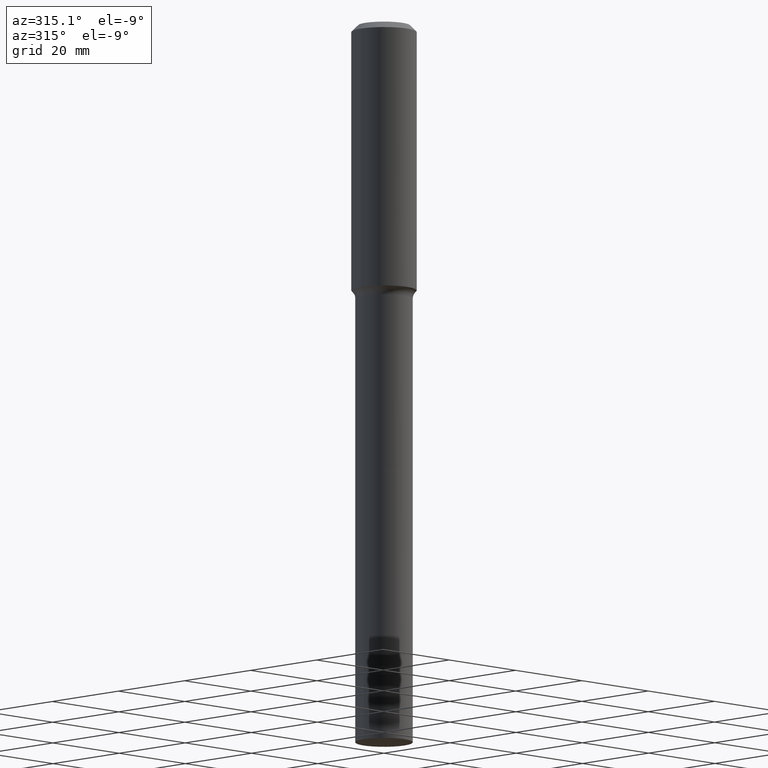
[diagram: clean part render]
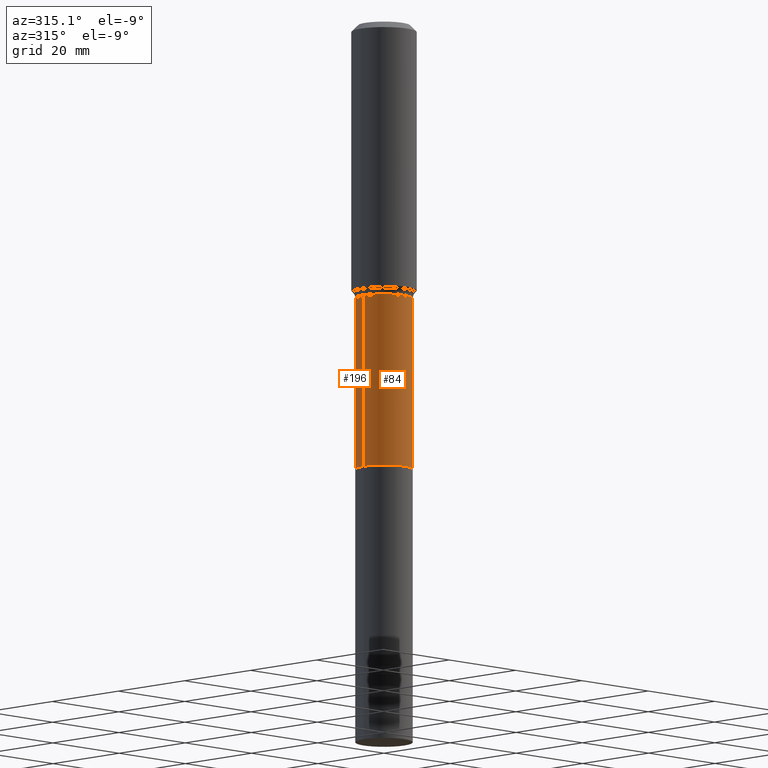
[diagram: same view with one multi-face feature highlighted, each face labeled with its STEP entity id]
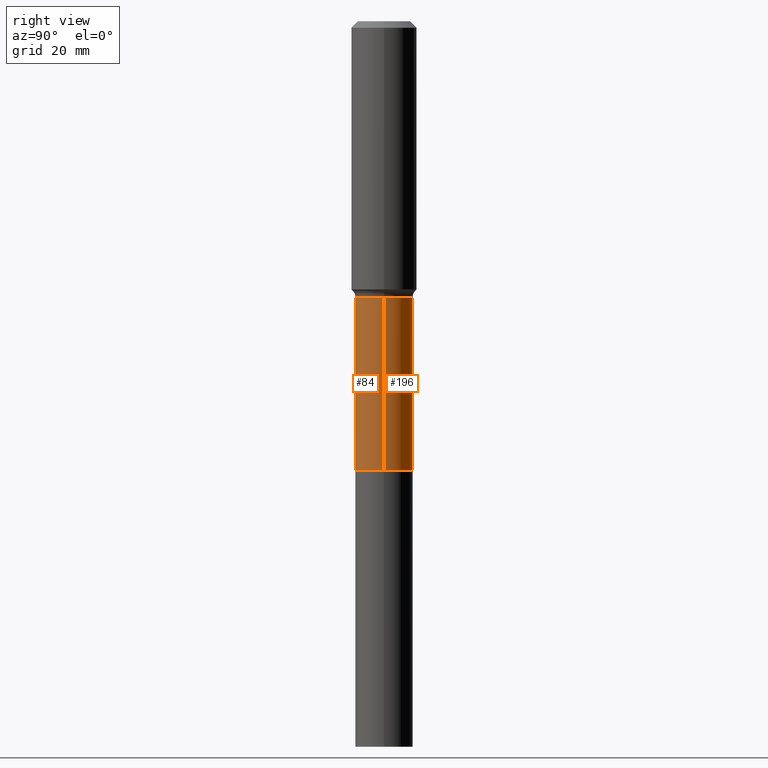
[diagram: same view with one multi-face feature highlighted, each face labeled with its STEP entity id]
A machine part, auxiliary view. The highlighted faces form ONE feature: a constant-radius fillet chain: 2 tangent blend faces with common blend radius 6.1519 mm. The faces share edges in the B-rep.
A second angle (right view) of the same feature is appended — it is thin or edge-on in the first view.
Their STEP definitions:
[1] entity #196 (Cylinder):
#4 = AXIS2_PLACEMENT_3D ( 'NONE', #144, #382, #340 ) ;
#16 = DIRECTION ( 'NONE',  ( -2.445468806185136877E-29, 3.491481338843145188E-15, 1.000000000000000000 ) ) ;
#20 = CARTESIAN_POINT ( 'NONE',  ( 0.2422000000000000264, -1.691273560535613991E-15, 1.181010015097775692E-29 ) ) ;
#59 = CARTESIAN_POINT ( 'NONE',  ( -0.2421999999999999154, -8.930353040330880505E-15, -2.322400000000000464 ) ) ;
#91 = DIRECTION ( 'NONE',  ( 1.000000000000000000, -6.982962677686266711E-15, 4.876176775795935232E-29 ) ) ;
#128 = CYLINDRICAL_SURFACE ( 'NONE', #398, 0.2422000000000000264 ) ;
#144 = CARTESIAN_POINT ( 'NONE',  ( 5.679356755484362262E-29, -8.108616261329323209E-15, -2.322400000000000464 ) ) ;
#160 = DIRECTION ( 'NONE',  ( -2.445468806185136597E-29, 3.491481338843145583E-15, 1.000000000000000000 ) ) ;
#163 = CARTESIAN_POINT ( 'NONE',  ( 9.241182071693010244E-29, -1.319395883135436111E-14, -3.778899999999999260 ) ) ;
#196 = ADVANCED_FACE ( 'NONE', ( #318 ), #128, .T. ) ;
#203 = LINE ( 'NONE', #366, #285 ) ;
#254 = CARTESIAN_POINT ( 'NONE',  ( -0.2422000000000000819, -8.930353040330880505E-15, -3.778899999999999260 ) ) ;
#266 = ORIENTED_EDGE ( 'NONE', *, *, #372, .F. ) ;
#285 = VECTOR ( 'NONE', #16, 39.37007874015748143 ) ;
#300 = LINE ( 'NONE', #20, #502 ) ;
#318 = FACE_OUTER_BOUND ( 'NONE', #385, .T. ) ;
#321 = ORIENTED_EDGE ( 'NONE', *, *, #493, .T. ) ;
#326 = DIRECTION ( 'NONE',  ( 1.000000000000000000, -6.982962677686264344E-15, 0.000000000000000000 ) ) ;
#334 = VERTEX_POINT ( 'NONE', #408 ) ;
#340 = DIRECTION ( 'NONE',  ( 1.000000000000000000, -6.982962677686265133E-15, 0.000000000000000000 ) ) ;
#347 = ORIENTED_EDGE ( 'NONE', *, *, #468, .T. ) ;
#351 = AXIS2_PLACEMENT_3D ( 'NONE', #163, #160, #326 ) ;
#352 = VERTEX_POINT ( 'NONE', #418 ) ;
#355 = EDGE_CURVE ( 'NONE', #352, #334, #300, .T. ) ;
#365 = ORIENTED_EDGE ( 'NONE', *, *, #355, .F. ) ;
#366 = CARTESIAN_POINT ( 'NONE',  ( -0.2422000000000000264, 1.720934506010962838E-15, -1.191366078859738205E-29 ) ) ;
#372 = EDGE_CURVE ( 'NONE', #334, #426, #440, .T. ) ;
#382 = DIRECTION ( 'NONE',  ( -2.445468806185136597E-29, 3.491481338843145583E-15, 1.000000000000000000 ) ) ;
#385 = EDGE_LOOP ( 'NONE', ( #347, #321, #266, #365 ) ) ;
#398 = AXIS2_PLACEMENT_3D ( 'NONE', #485, #448, #91 ) ;
#399 = VERTEX_POINT ( 'NONE', #254 ) ;
#408 = CARTESIAN_POINT ( 'NONE',  ( 0.2421999999999999154, -9.799889821864935820E-15, -2.322400000000000464 ) ) ;
#418 = CARTESIAN_POINT ( 'NONE',  ( 0.2422000000000000819, -1.488523239188997372E-14, -3.778899999999999260 ) ) ;
#426 = VERTEX_POINT ( 'NONE', #59 ) ;
#440 = CIRCLE ( 'NONE', #4, 0.2421999999999999154 ) ;
#448 = DIRECTION ( 'NONE',  ( -2.445468806185136597E-29, 3.491481338843145583E-15, 1.000000000000000000 ) ) ;
#459 = DIRECTION ( 'NONE',  ( -2.445468806185136877E-29, 3.491481338843145188E-15, 1.000000000000000000 ) ) ;
#468 = EDGE_CURVE ( 'NONE', #352, #399, #515, .T. ) ;
#485 = CARTESIAN_POINT ( 'NONE',  ( 0.000000000000000000, 0.000000000000000000, 0.000000000000000000 ) ) ;
#493 = EDGE_CURVE ( 'NONE', #399, #426, #203, .T. ) ;
#502 = VECTOR ( 'NONE', #459, 39.37007874015748143 ) ;
#515 = CIRCLE ( 'NONE', #351, 0.2422000000000000819 ) ;
[2] entity #84 (Cylinder):
#16 = DIRECTION ( 'NONE',  ( -2.445468806185136877E-29, 3.491481338843145188E-15, 1.000000000000000000 ) ) ;
#20 = CARTESIAN_POINT ( 'NONE',  ( 0.2422000000000000264, -1.691273560535613991E-15, 1.181010015097775692E-29 ) ) ;
#54 = DIRECTION ( 'NONE',  ( -2.445468806185136597E-29, 3.491481338843145583E-15, 1.000000000000000000 ) ) ;
#59 = CARTESIAN_POINT ( 'NONE',  ( -0.2421999999999999154, -8.930353040330880505E-15, -2.322400000000000464 ) ) ;
#64 = DIRECTION ( 'NONE',  ( -2.445468806185136597E-29, 3.491481338843145583E-15, 1.000000000000000000 ) ) ;
#84 = ADVANCED_FACE ( 'NONE', ( #253 ), #458, .T. ) ;
#108 = DIRECTION ( 'NONE',  ( -2.445468806185136597E-29, 3.491481338843145583E-15, 1.000000000000000000 ) ) ;
#146 = ORIENTED_EDGE ( 'NONE', *, *, #493, .F. ) ;
#147 = DIRECTION ( 'NONE',  ( 1.000000000000000000, -6.982962677686266711E-15, 4.876176775795935232E-29 ) ) ;
#149 = CIRCLE ( 'NONE', #192, 0.2421999999999999154 ) ;
#156 = AXIS2_PLACEMENT_3D ( 'NONE', #417, #108, #147 ) ;
#192 = AXIS2_PLACEMENT_3D ( 'NONE', #495, #64, #371 ) ;
#203 = LINE ( 'NONE', #366, #285 ) ;
#235 = CIRCLE ( 'NONE', #284, 0.2422000000000000819 ) ;
#253 = FACE_OUTER_BOUND ( 'NONE', #310, .T. ) ;
#254 = CARTESIAN_POINT ( 'NONE',  ( -0.2422000000000000819, -8.930353040330880505E-15, -3.778899999999999260 ) ) ;
#284 = AXIS2_PLACEMENT_3D ( 'NONE', #492, #54, #456 ) ;
#285 = VECTOR ( 'NONE', #16, 39.37007874015748143 ) ;
#300 = LINE ( 'NONE', #20, #502 ) ;
#310 = EDGE_LOOP ( 'NONE', ( #146, #517, #470, #358 ) ) ;
#334 = VERTEX_POINT ( 'NONE', #408 ) ;
#352 = VERTEX_POINT ( 'NONE', #418 ) ;
#353 = EDGE_CURVE ( 'NONE', #426, #334, #149, .T. ) ;
#355 = EDGE_CURVE ( 'NONE', #352, #334, #300, .T. ) ;
#358 = ORIENTED_EDGE ( 'NONE', *, *, #353, .F. ) ;
#366 = CARTESIAN_POINT ( 'NONE',  ( -0.2422000000000000264, 1.720934506010962838E-15, -1.191366078859738205E-29 ) ) ;
#371 = DIRECTION ( 'NONE',  ( 1.000000000000000000, -6.982962677686265133E-15, 0.000000000000000000 ) ) ;
#399 = VERTEX_POINT ( 'NONE', #254 ) ;
#408 = CARTESIAN_POINT ( 'NONE',  ( 0.2421999999999999154, -9.799889821864935820E-15, -2.322400000000000464 ) ) ;
#417 = CARTESIAN_POINT ( 'NONE',  ( 0.000000000000000000, 0.000000000000000000, 0.000000000000000000 ) ) ;
#418 = CARTESIAN_POINT ( 'NONE',  ( 0.2422000000000000819, -1.488523239188997372E-14, -3.778899999999999260 ) ) ;
#426 = VERTEX_POINT ( 'NONE', #59 ) ;
#444 = EDGE_CURVE ( 'NONE', #399, #352, #235, .T. ) ;
#456 = DIRECTION ( 'NONE',  ( 1.000000000000000000, -6.982962677686264344E-15, 0.000000000000000000 ) ) ;
#458 = CYLINDRICAL_SURFACE ( 'NONE', #156, 0.2422000000000000264 ) ;
#459 = DIRECTION ( 'NONE',  ( -2.445468806185136877E-29, 3.491481338843145188E-15, 1.000000000000000000 ) ) ;
#470 = ORIENTED_EDGE ( 'NONE', *, *, #355, .T. ) ;
#492 = CARTESIAN_POINT ( 'NONE',  ( 9.241182071693010244E-29, -1.319395883135436111E-14, -3.778899999999999260 ) ) ;
#493 = EDGE_CURVE ( 'NONE', #399, #426, #203, .T. ) ;
#495 = CARTESIAN_POINT ( 'NONE',  ( 5.679356755484362262E-29, -8.108616261329323209E-15, -2.322400000000000464 ) ) ;
#502 = VECTOR ( 'NONE', #459, 39.37007874015748143 ) ;
#517 = ORIENTED_EDGE ( 'NONE', *, *, #444, .T. ) ;